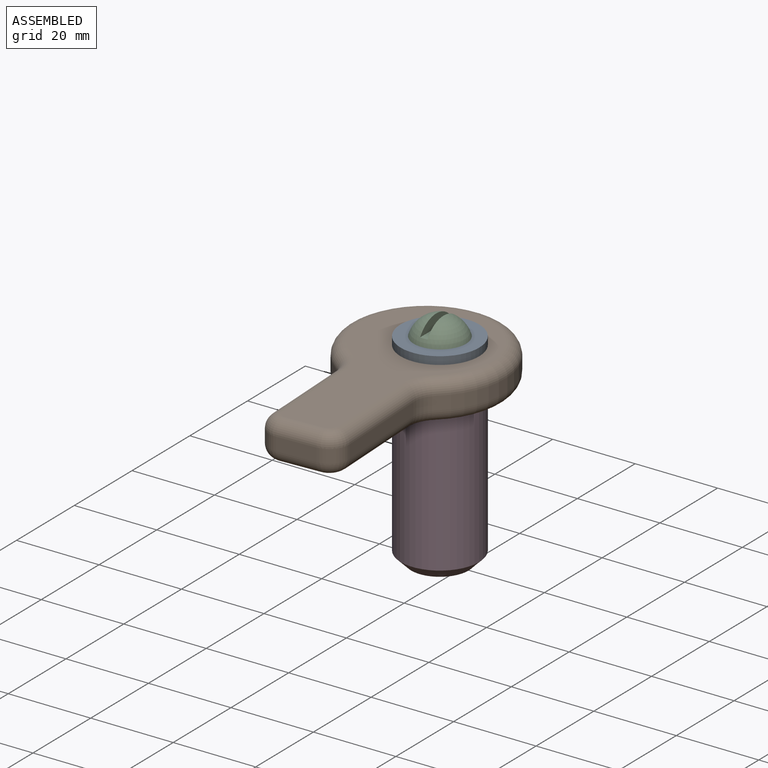
[diagram: assembled view]
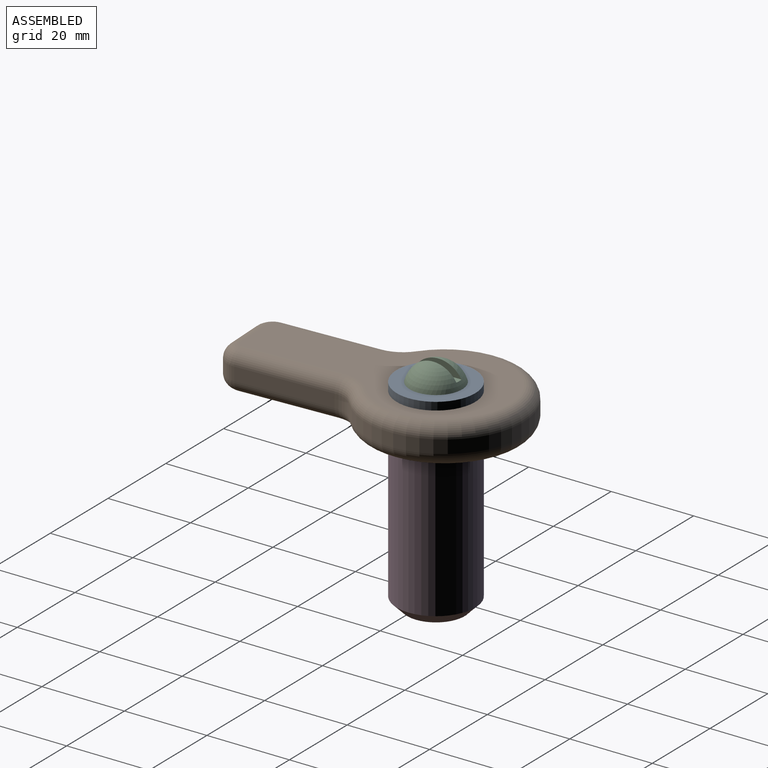
[diagram: assembled view, second angle]
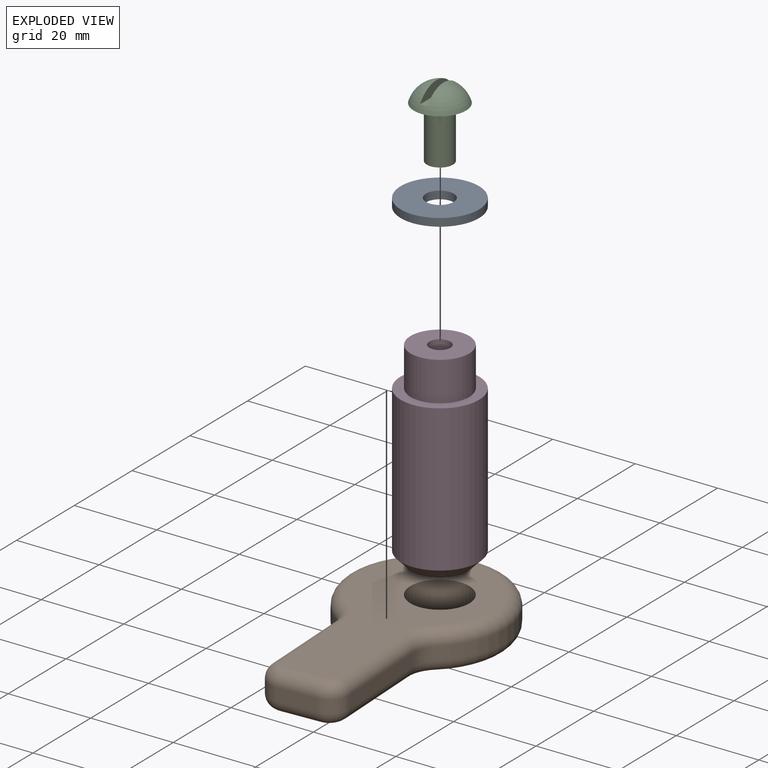
[diagram: exploded view]
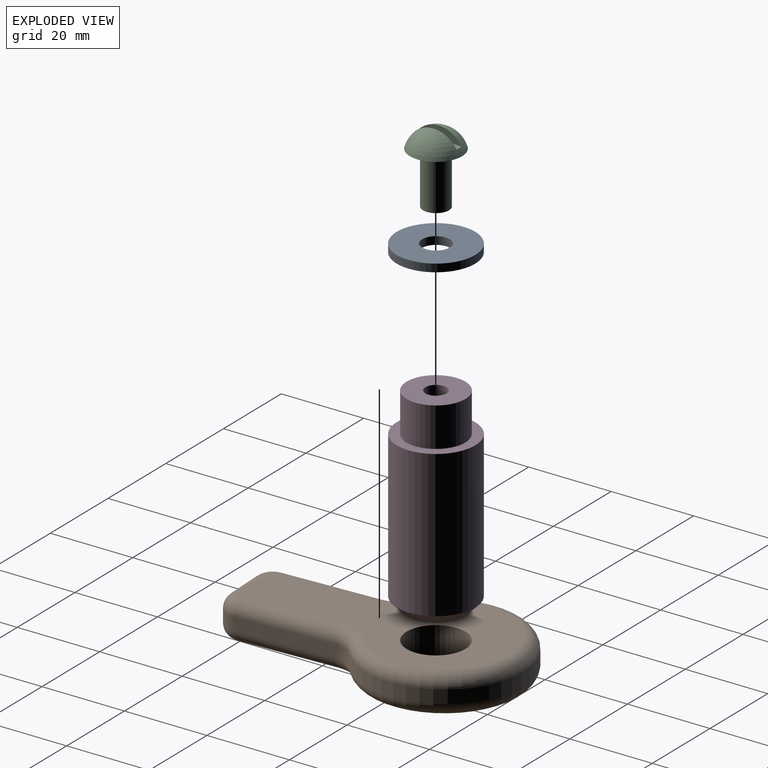
[diagram: exploded view, second angle]
ASSEMBLY  parts=4 mates=3
PART A: 4 faces, bbox 19.1x19.1x1.9 mm
  f0: cylinder r=9.53mm len=19.05mm, axis (0,0,-1), area 114mm2, adj f2,f3
  f1: cylinder r=3.38mm len=6.76mm, axis (0,0,-1), area 40.4mm2, adj f2,f3
  f2: plane 19.05x19.05mm, normal (0,0,1), area 249.2mm2, adj f0,f1
  f3: plane 19.05x19.05mm, normal (0,0,-1), area 249.2mm2, adj f0,f1
PART B: 27 faces, bbox 41.2x68.9x9.5 mm
  f0: plane 23.64x3.18mm, normal (1,0,0), area 75.1mm2, adj f8,f10,f11,f19
  f1: cylinder r=19.05mm len=38.1mm, axis (0,0,-1), area 298.4mm2, adj f7,f8,f14,f22
  f2: plane 23.64x3.18mm, normal (-1,0,0), area 75.1mm2, adj f7,f9,f18,f26
  f3: plane 9.5x3.18mm, normal (0,-1,0), area 30.2mm2, adj f9,f10,f15,f23
  f4: cylinder r=7.14mm len=14.28mm, axis (0,0,-1), area 427.2mm2, adj f5,f6
  f5: plane 60.95x31.75mm, normal (0,0,1), area 1014.6mm2, adj f4,f11,f12,f13,f14,f15,f16,f17
  f6: plane 60.95x31.75mm, normal (0,0,-1), area 1014.6mm2, adj f4,f19,f20,f21,f22,f23,f24,f25
  f7: cylinder r=6.35mm len=4.96mm, axis (0,0,-1), area 18.1mm2, adj f1,f2,f16,f24
  f8: cylinder r=6.35mm len=4.96mm, axis (0,0,-1), area 18.1mm2, adj f0,f1,f12,f20
  f9: cylinder r=4.78mm len=4.78mm, axis (0,0,-1), area 23.8mm2, adj f2,f3,f17,f25
  f10: cylinder r=4.78mm len=4.78mm, axis (0,0,1), area 23.8mm2, adj f0,f3,f13,f21
  f11: cylinder r=3.17mm len=23.64mm, axis (0,-1,0), area 117.9mm2, adj f0,f5,f12,f13
  f12: torus R=9.53mm, axis (0,0,1), area 33.5mm2, adj f5,f8,f11,f14
  f13: torus R=1.6mm, axis (0,0,1), area 28.4mm2, adj f5,f10,f11,f15
  f14: torus R=15.88mm, axis (0,0,1), area 440.3mm2, adj f1,f5,f12,f16
  f15: cylinder r=3.17mm len=9.5mm, axis (-1,0,0), area 47.4mm2, adj f3,f5,f13,f17
  f16: torus R=9.53mm, axis (0,0,1), area 33.5mm2, adj f5,f7,f14,f18
  f17: torus R=1.6mm, axis (0,0,1), area 28.4mm2, adj f5,f9,f15,f18
  f18: cylinder r=3.17mm len=23.64mm, axis (0,1,0), area 117.9mm2, adj f2,f5,f16,f17
  f19: cylinder r=3.17mm len=23.64mm, axis (0,1,0), area 117.9mm2, adj f0,f6,f20,f21
  f20: torus R=9.53mm, axis (0,0,1), area 33.5mm2, adj f6,f8,f19,f22
  f21: torus R=1.6mm, axis (0,0,1), area 28.4mm2, adj f6,f10,f19,f23
  f22: torus R=15.88mm, axis (0,0,1), area 440.3mm2, adj f1,f6,f20,f24
  f23: cylinder r=3.17mm len=9.5mm, axis (1,0,0), area 47.4mm2, adj f3,f6,f21,f25
  f24: torus R=9.53mm, axis (0,0,1), area 33.5mm2, adj f6,f7,f22,f26
  f25: torus R=1.6mm, axis (0,0,1), area 28.4mm2, adj f6,f9,f23,f26
  f26: cylinder r=3.17mm len=23.64mm, axis (0,-1,0), area 117.9mm2, adj f2,f6,f24,f25
PART C: 7 faces, bbox 12.7x12.7x17.4 mm
  f0: cylinder r=3.17mm len=12.7mm, axis (0,0,1), area 253.4mm2, adj f1,f3
  f1: plane 12.7x12.7mm, normal (0,0,-1), area 95mm2, adj f0,f2
  f2: sphere r=6.61mm, area 174.3mm2, adj f1,f4,f5,f6
  f3: plane 6.35x6.35mm, normal (0,0,-1), area 31.7mm2, adj f0
  f4: plane 11.29x1.78mm, normal (0,0,1), area 20mm2, adj f2,f5,f6
  f5: plane 11.15x3.12mm, normal (-1,0,0), area 24.5mm2, adj f2,f4
  f6: plane 11.15x3.12mm, normal (1,0,0), area 24.5mm2, adj f2,f4
PART D: 8 faces, bbox 19.1x19.1x47.6 mm
  f0: plane 19.05x19.05mm, normal (0,0,1), area 125mm2, adj f1,f4
  f1: cylinder r=7.14mm len=14.28mm, axis (0,0,1), area 427.2mm2, adj f0,f2
  f2: plane 14.28x14.28mm, normal (0,0,1), area 139.6mm2, adj f1,f5
  f3: plane 13.97x13.97mm, normal (0,0,-1), area 153.3mm2, adj f7
  f4: cylinder r=9.53mm len=35.56mm, axis (0,0,1), area 2128.2mm2, adj f0,f7
  f5: cylinder r=2.55mm len=16.51mm, axis (0,0,1), area 264.8mm2, adj f2,f6
  f6: cone r=0mm half-angle=59deg, axis (0,0,1), area 23.9mm2, adj f5
  f7: cone r=9.53mm half-angle=45deg, axis (0,0,1), area 186.3mm2, adj f3,f4
PLACE A t=(-1.76,6.33,11.02)mm
PLACE B rot(axis=(0,0,1),2.6deg) t=(-1.76,6.33,11.02)mm
PLACE C t=(-1.76,6.33,11.02)mm
PLACE D t=(-1.76,6.33,11.02)mm
MATE fastened C.f0 <-> A.f0  axis (0,0,-1) through (-1.76,6.33,22.45)mm
MATE fastened D.f1 <-> A.f0  axis (0,0,1) through (-1.76,6.33,20.54)mm
MATE revolute B.f4 <-> D.f1  axis (0,0,1) through (-1.76,6.33,20.54)mm
